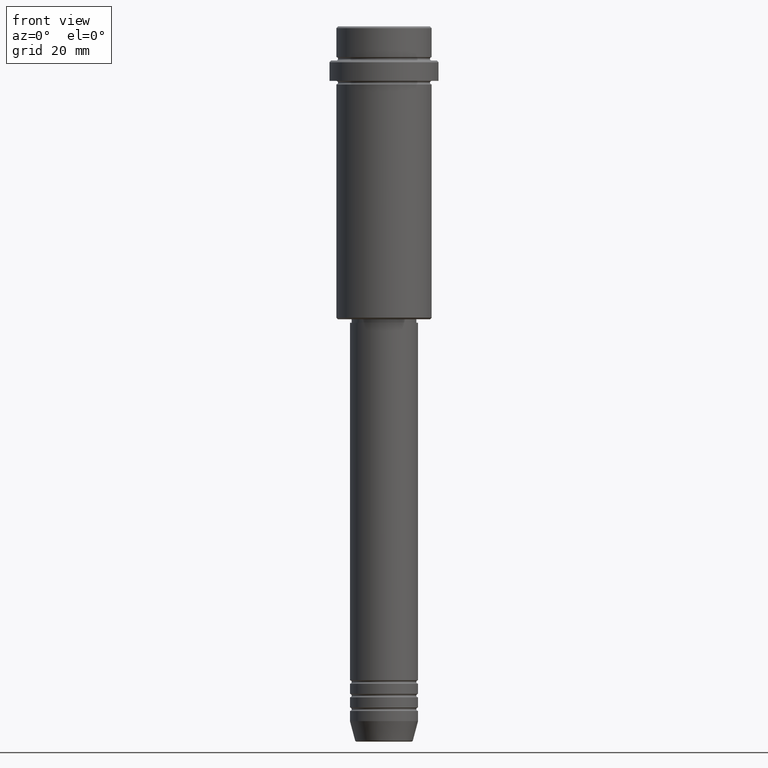
[diagram: clean part render]
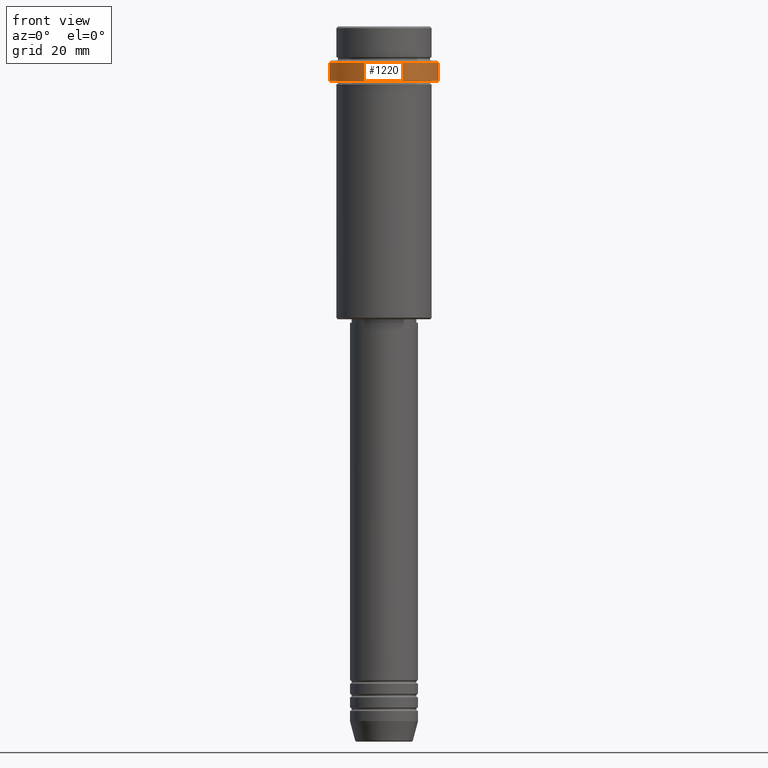
[diagram: same view with one face highlighted and labeled with its STEP entity id]
A machine part, front view. The second image highlights one B-rep face of the part: STEP entity #1220.
In plain terms, the highlighted cylindrical surface (partial cylindrical patch) has radius 16 mm, axis along (-0, -0, 1).
Its self-contained STEP definition (entity closure, byte-faithful):
#42 = VECTOR ( 'NONE', #538, 1000.000000000000000 ) ;
#175 = ORIENTED_EDGE ( 'NONE', *, *, #1325, .T. ) ;
#184 = CARTESIAN_POINT ( 'NONE',  ( 15.99999999999997335, 0.000000000000000000, -10.50000000000001243 ) ) ;
#225 = LINE ( 'NONE', #663, #42 ) ;
#277 = ORIENTED_EDGE ( 'NONE', *, *, #1155, .F. ) ;
#306 = AXIS2_PLACEMENT_3D ( 'NONE', #1240, #800, #793 ) ;
#328 = DIRECTION ( 'NONE',  ( -0.000000000000000000, -0.000000000000000000, 1.000000000000000000 ) ) ;
#462 = AXIS2_PLACEMENT_3D ( 'NONE', #1265, #1053, #1176 ) ;
#488 = CARTESIAN_POINT ( 'NONE',  ( -15.99999999999997335, 1.959434878635761976E-15, 0.000000000000000000 ) ) ;
#538 = DIRECTION ( 'NONE',  ( -0.000000000000000000, -0.000000000000000000, 1.000000000000000000 ) ) ;
#552 = VERTEX_POINT ( 'NONE', #1050 ) ;
#556 = VERTEX_POINT ( 'NONE', #184 ) ;
#621 = LINE ( 'NONE', #488, #1107 ) ;
#627 = CIRCLE ( 'NONE', #306, 15.99999999999997335 ) ;
#663 = CARTESIAN_POINT ( 'NONE',  ( 15.99999999999997335, 0.000000000000000000, 0.000000000000000000 ) ) ;
#685 = EDGE_LOOP ( 'NONE', ( #277, #1007, #1006, #175 ) ) ;
#771 = DIRECTION ( 'NONE',  ( 1.000000000000000000, 0.000000000000000000, 0.000000000000000000 ) ) ;
#793 = DIRECTION ( 'NONE',  ( 1.000000000000000000, 0.000000000000000000, 0.000000000000000000 ) ) ;
#800 = DIRECTION ( 'NONE',  ( 0.000000000000000000, 0.000000000000000000, -1.000000000000000000 ) ) ;
#809 = DIRECTION ( 'NONE',  ( -0.000000000000000000, -0.000000000000000000, 1.000000000000000000 ) ) ;
#872 = CARTESIAN_POINT ( 'NONE',  ( 0.000000000000000000, 0.000000000000000000, -16.00000000000000000 ) ) ;
#884 = VERTEX_POINT ( 'NONE', #1400 ) ;
#925 = EDGE_CURVE ( 'NONE', #884, #556, #225, .T. ) ;
#928 = FACE_OUTER_BOUND ( 'NONE', #685, .T. ) ;
#938 = CIRCLE ( 'NONE', #1181, 15.99999999999997335 ) ;
#948 = CARTESIAN_POINT ( 'NONE',  ( -15.99999999999997335, 1.959434878635761976E-15, -10.50000000000001243 ) ) ;
#1006 = ORIENTED_EDGE ( 'NONE', *, *, #925, .T. ) ;
#1007 = ORIENTED_EDGE ( 'NONE', *, *, #1186, .T. ) ;
#1050 = CARTESIAN_POINT ( 'NONE',  ( -15.99999999999997335, 1.959434878635761976E-15, -16.00000000000000000 ) ) ;
#1053 = DIRECTION ( 'NONE',  ( -0.000000000000000000, -0.000000000000000000, 1.000000000000000000 ) ) ;
#1107 = VECTOR ( 'NONE', #809, 1000.000000000000000 ) ;
#1155 = EDGE_CURVE ( 'NONE', #552, #1249, #621, .T. ) ;
#1176 = DIRECTION ( 'NONE',  ( 1.000000000000000000, 0.000000000000000000, 0.000000000000000000 ) ) ;
#1181 = AXIS2_PLACEMENT_3D ( 'NONE', #872, #328, #771 ) ;
#1186 = EDGE_CURVE ( 'NONE', #552, #884, #938, .T. ) ;
#1220 = ADVANCED_FACE ( 'NONE', ( #928 ), #1358, .T. ) ;
#1240 = CARTESIAN_POINT ( 'NONE',  ( 0.000000000000000000, 0.000000000000000000, -10.50000000000001243 ) ) ;
#1249 = VERTEX_POINT ( 'NONE', #948 ) ;
#1265 = CARTESIAN_POINT ( 'NONE',  ( 0.000000000000000000, 0.000000000000000000, 0.000000000000000000 ) ) ;
#1325 = EDGE_CURVE ( 'NONE', #556, #1249, #627, .T. ) ;
#1358 = CYLINDRICAL_SURFACE ( 'NONE', #462, 15.99999999999997335 ) ;
#1400 = CARTESIAN_POINT ( 'NONE',  ( 15.99999999999997335, 0.000000000000000000, -16.00000000000000000 ) ) ;